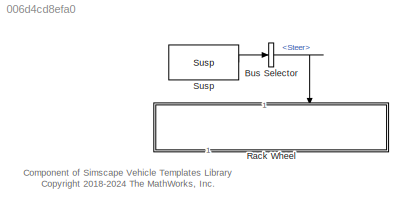
MODEL slx_006d4cd8efa0
KIND library
CONFIG AbsTol = auto
CONFIG EnableMultiTasking = off
CONFIG FixedStep = auto
CONFIG MaxStep = auto
CONFIG MinStep = auto
CONFIG RelTol = 1e-3
CONFIG SampleTimeConstraint = Unconstrained
CONFIG SolverName = VariableStepAuto
CONFIG StartTime = 0.0
CONFIG StopTime = 10.0
BLOCK [BusSelector] Bus Selector
  OutputSignals = Steer
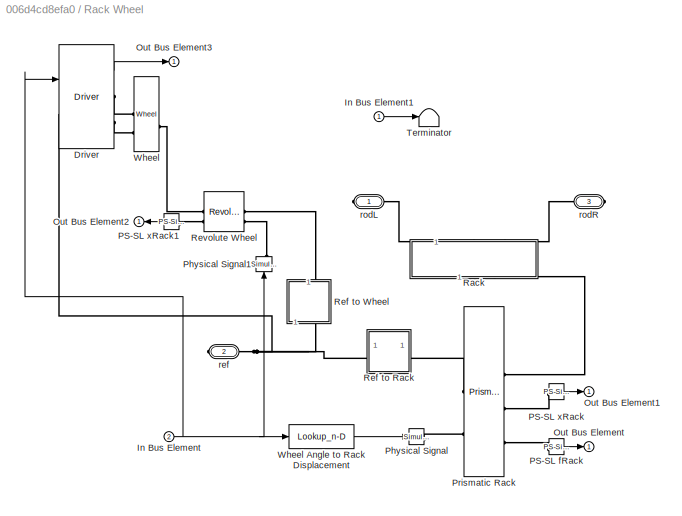
BLOCK [SubSystem] Rack Wheel
  NameLocation = left
  Tag = PublishSubsystem
  VariantControl = Rack
BLOCK [Reference] Rack Wheel/Driver  REF=Driver_Systems/Driver
  AttributesFormatString = %<LabelModeActiveChoice>
  SourceBlock = Driver_Systems/Driver
BLOCK [Inport] Rack Wheel/In Bus Element
  Port = 2
BLOCK [Inport] Rack Wheel/In Bus Element1
BLOCK [Outport] Rack Wheel/Out Bus Element
  VectorParamsAs1DForOutWhenUnconnected = off
BLOCK [Outport] Rack Wheel/Out Bus Element1
  VectorParamsAs1DForOutWhenUnconnected = off
BLOCK [Outport] Rack Wheel/Out Bus Element2
  VectorParamsAs1DForOutWhenUnconnected = off
BLOCK [Outport] Rack Wheel/Out Bus Element3
  VectorParamsAs1DForOutWhenUnconnected = off
BLOCK [Reference] Rack Wheel/PS-SL fRack  REF=nesl_utility/PS-Simulink
Converter
  SourceBlock = nesl_utility/PS-Simulink\nConverter
  SourceType = PS-Simulink\nConverter
BLOCK [Reference] Rack Wheel/PS-SL xRack  REF=nesl_utility/PS-Simulink
Converter
  SourceBlock = nesl_utility/PS-Simulink\nConverter
  SourceType = PS-Simulink\nConverter
BLOCK [Reference] Rack Wheel/PS-SL xRack1  REF=nesl_utility/PS-Simulink
Converter
  SourceBlock = nesl_utility/PS-Simulink\nConverter
  SourceType = PS-Simulink\nConverter
BLOCK [Reference] Rack Wheel/Physical Signal  REF=nesl_utility/Simulink-PS
Converter
  AttributesFormatString = Filter Time Constant\n%<InputFilterTimeConstant> sec
  SourceBlock = nesl_utility/Simulink-PS\nConverter
  SourceType = Simulink-PS\nConverter
BLOCK [Reference] Rack Wheel/Physical Signal1  REF=nesl_utility/Simulink-PS
Converter
  AttributesFormatString = Filter Time Constant\n%<InputFilterTimeConstant> sec
  NameLocation = left
  SourceBlock = nesl_utility/Simulink-PS\nConverter
  SourceType = Simulink-PS\nConverter
BLOCK [Reference] Rack Wheel/Prismatic Rack  REF=sm_lib/Joints/Prismatic
Joint
  SourceBlock = sm_lib/Joints/Prismatic\nJoint
  SourceType = Prismatic\nJoint
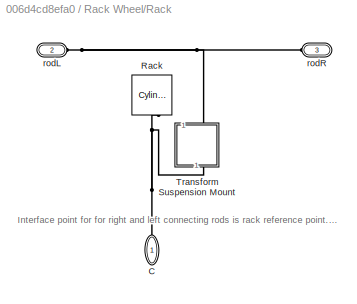
BLOCK [SubSystem] Rack Wheel/Rack
  NameLocation = left
BLOCK [PMIOPort] Rack Wheel/Rack/C
  NameLocation = left
  Side = Right
BLOCK [Reference] Rack Wheel/Rack/Rack  REF=sm_lib/Body Elements/Cylindrical Solid
  NameLocation = left
  SourceBlock = sm_lib/Body Elements/Cylindrical Solid
  SourceType = Cylindrical Solid
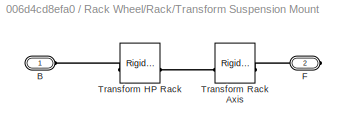
BLOCK [SubSystem] Rack Wheel/Rack/Transform Suspension Mount
  NameLocation = right
BLOCK [PMIOPort] Rack Wheel/Rack/Transform Suspension Mount/B
  Side = Left
BLOCK [PMIOPort] Rack Wheel/Rack/Transform Suspension Mount/F
  Port = 2
  Side = Right
BLOCK [Reference] Rack Wheel/Rack/Transform Suspension Mount/Transform HP Rack  REF=sm_lib/Frames and
Transforms/Rigid
Transform
  SourceBlock = sm_lib/Frames and\nTransforms/Rigid\nTransform
  SourceType = Rigid\nTransform
BLOCK [Reference] Rack Wheel/Rack/Transform Suspension Mount/Transform Rack Axis  REF=sm_lib/Frames and
Transforms/Rigid
Transform
  SourceBlock = sm_lib/Frames and\nTransforms/Rigid\nTransform
  SourceType = Rigid\nTransform
BLOCK [PMIOPort] Rack Wheel/Rack/rodL
  Port = 2
  Side = Left
BLOCK [PMIOPort] Rack Wheel/Rack/rodR
  Port = 3
  Side = Left
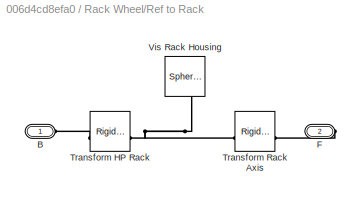
BLOCK [SubSystem] Rack Wheel/Ref to Rack
BLOCK [PMIOPort] Rack Wheel/Ref to Rack/B
  Side = Left
BLOCK [PMIOPort] Rack Wheel/Ref to Rack/F
  Port = 2
  Side = Right
BLOCK [Reference] Rack Wheel/Ref to Rack/Transform HP Rack  REF=sm_lib/Frames and
Transforms/Rigid
Transform
  SourceBlock = sm_lib/Frames and\nTransforms/Rigid\nTransform
  SourceType = Rigid\nTransform
BLOCK [Reference] Rack Wheel/Ref to Rack/Transform Rack Axis  REF=sm_lib/Frames and
Transforms/Rigid
Transform
  SourceBlock = sm_lib/Frames and\nTransforms/Rigid\nTransform
  SourceType = Rigid\nTransform
BLOCK [Reference] Rack Wheel/Ref to Rack/Vis Rack Housing  REF=sm_lib/Body Elements/Spherical Solid
  NameLocation = left
  SourceBlock = sm_lib/Body Elements/Spherical Solid
  SourceType = Spherical Solid
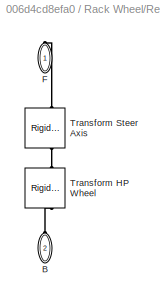
BLOCK [SubSystem] Rack Wheel/Ref to Wheel
  NameLocation = right
BLOCK [PMIOPort] Rack Wheel/Ref to Wheel/B
  NameLocation = right
  Port = 2
  Side = Left
BLOCK [PMIOPort] Rack Wheel/Ref to Wheel/F
  NameLocation = left
  Side = Right
BLOCK [Reference] Rack Wheel/Ref to Wheel/Transform HP Wheel  REF=sm_lib/Frames and
Transforms/Rigid
Transform
  NameLocation = left
  SourceBlock = sm_lib/Frames and\nTransforms/Rigid\nTransform
  SourceType = Rigid\nTransform
BLOCK [Reference] Rack Wheel/Ref to Wheel/Transform Steer Axis  REF=sm_lib/Frames and
Transforms/Rigid
Transform
  NameLocation = left
  SourceBlock = sm_lib/Frames and\nTransforms/Rigid\nTransform
  SourceType = Rigid\nTransform
BLOCK [Reference] Rack Wheel/Revolute Wheel  REF=sm_lib/Joints/Revolute Joint
  SourceBlock = sm_lib/Joints/Revolute Joint
  SourceType = Revolute Joint
BLOCK [Terminator] Rack Wheel/Terminator
BLOCK [Reference] Rack Wheel/Wheel  REF=SteeringWheel/Wheel
  SourceBlock = SteeringWheel/Wheel
BLOCK [Lookup_n-D] Rack Wheel/Wheel Angle to Rack Displacement
  BreakpointsForDimension1 = whl2rack_whlangle
  InputPortMap = u0
  InternalRulePriority = Speed
  NumberOfTableDimensions = 1
  RndMeth = Simplest
  Table = whl2rack_rackdisp
BLOCK [PMIOPort] Rack Wheel/ref
  Port = 2
  Side = Right
BLOCK [PMIOPort] Rack Wheel/rodL
  Side = Right
BLOCK [PMIOPort] Rack Wheel/rodR
  Port = 3
  Side = Right
BLOCK [Reference] Susp  REF=Vehicle_Inputs/Control Bus/Susp
  SourceBlock = Vehicle_Inputs/Control Bus/Susp
ANNOTATION (root): Component of Simscape Vehicle Templates Library <copyright redacted>
ANNOTATION Rack Wheel/Rack: Interface point for for right and left connecting rods is rack reference point. This permits the rack subsystem to mate with the connecting rods without knowing where they are, as both systems (rack and linkages) know where the front axle reference point is.
LINE Bus Selector:1 -> Rack Wheel:2
LINE Susp:1 -> Bus Selector:1
